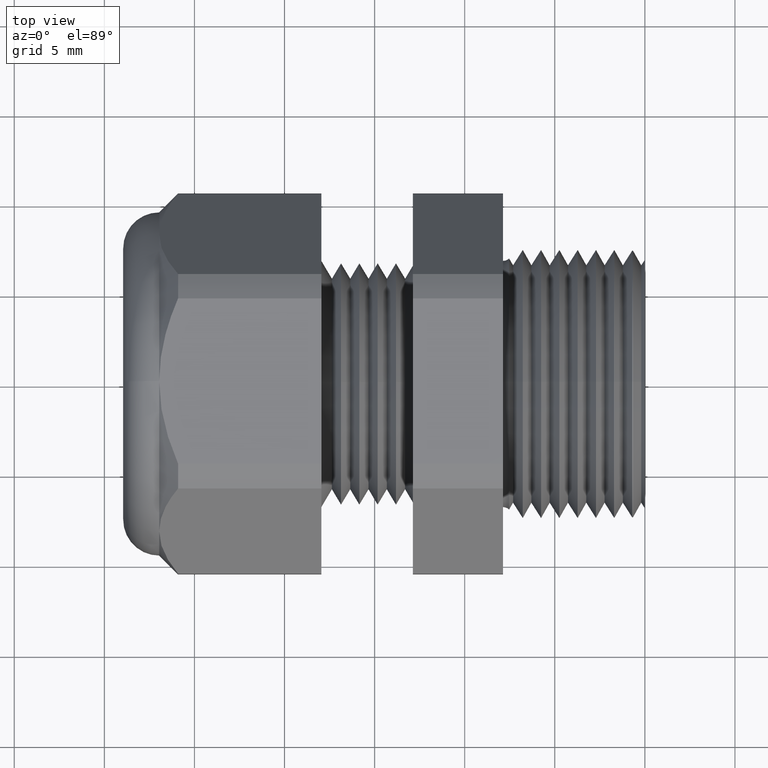
[diagram: clean part render]
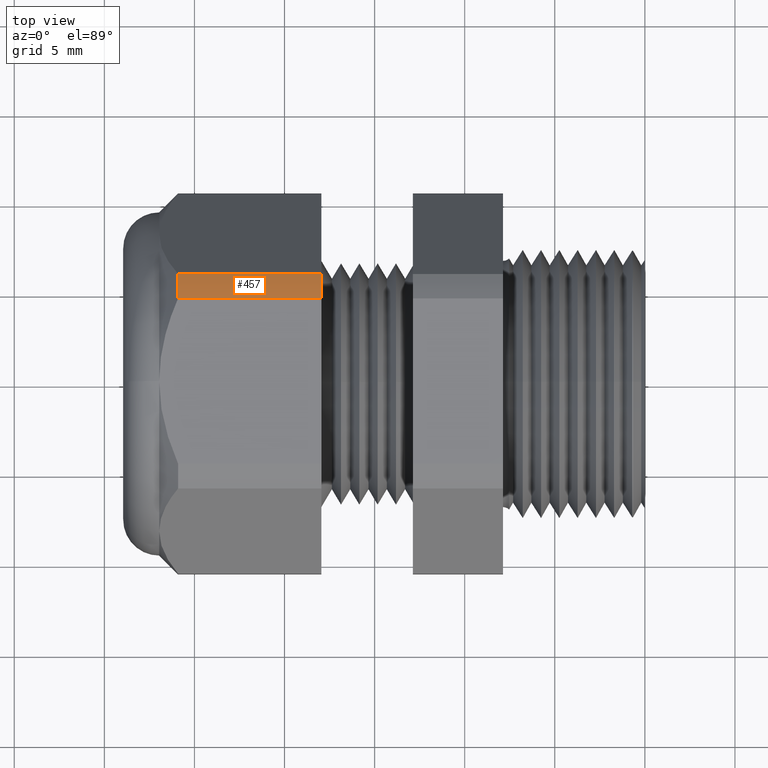
[diagram: same view with one face highlighted and labeled with its STEP entity id]
A machine part, top view. The second image highlights one B-rep face of the part: STEP entity #457.
In plain terms, the highlighted cylindrical surface (partial cylindrical patch) has radius 10.5727 mm, axis along (-1, 0, 0).
Its self-contained STEP definition (entity closure, byte-faithful):
#412 = EDGE_CURVE ( 'NONE', #465, #544, #2592, .T. ) ;
#456 = ORIENTED_EDGE ( 'NONE', *, *, #525, .T. ) ;
#457 = ADVANCED_FACE ( 'NONE', ( #2677 ), #2676, .T. ) ;
#465 = VERTEX_POINT ( 'NONE', #2656 ) ;
#525 = EDGE_CURVE ( 'NONE', #530, #546, #2827, .T. ) ;
#526 = ORIENTED_EDGE ( 'NONE', *, *, #547, .T. ) ;
#527 = ORIENTED_EDGE ( 'NONE', *, *, #528, .F. ) ;
#528 = EDGE_CURVE ( 'NONE', #530, #465, #2817, .T. ) ;
#530 = VERTEX_POINT ( 'NONE', #2811 ) ;
#534 = EDGE_LOOP ( 'NONE', ( #456, #526, #548, #527 ) ) ;
#544 = VERTEX_POINT ( 'NONE', #2883 ) ;
#546 = VERTEX_POINT ( 'NONE', #2882 ) ;
#547 = EDGE_CURVE ( 'NONE', #546, #544, #2881, .T. ) ;
#548 = ORIENTED_EDGE ( 'NONE', *, *, #412, .F. ) ;
#2589 = DIRECTION ( 'NONE',  ( -1.000000000000000000, 0.0000000000000000000, 0.0000000000000000000 ) ) ;
#2590 = VECTOR ( 'NONE', #2589, 39.37007874015748100 ) ;
#2591 = CARTESIAN_POINT ( 'NONE',  ( 0.0000000000000000000, 0.1806628420566889800, 0.3749999999999998300 ) ) ;
#2592 = LINE ( 'NONE', #2591, #2590 ) ;
#2656 = CARTESIAN_POINT ( 'NONE',  ( -0.7069291338582672800, 0.1806628420566889800, 0.3749999999999998300 ) ) ;
#2671 = DIRECTION ( 'NONE',  ( 0.0000000000000000000, 0.0000000000000000000, 1.000000000000000000 ) ) ;
#2672 = DIRECTION ( 'NONE',  ( -1.000000000000000000, 0.0000000000000000000, 0.0000000000000000000 ) ) ;
#2673 = CARTESIAN_POINT ( 'NONE',  ( 0.0000000000000000000, 0.0000000000000000000, 0.0000000000000000000 ) ) ;
#2674 = AXIS2_PLACEMENT_3D ( 'NONE', #2673, #2672, #2671 ) ;
#2676 = CYLINDRICAL_SURFACE ( 'NONE', #2674, 0.4162499999999999500 ) ;
#2677 = FACE_OUTER_BOUND ( 'NONE', #534, .T. ) ;
#2811 = CARTESIAN_POINT ( 'NONE',  ( -0.7069291338582672800, 0.2344281053908204600, 0.3439586107409877700 ) ) ;
#2813 = DIRECTION ( 'NONE',  ( 0.0000000000000000000, 0.0000000000000000000, -1.000000000000000000 ) ) ;
#2814 = DIRECTION ( 'NONE',  ( 1.000000000000000000, 0.0000000000000000000, 0.0000000000000000000 ) ) ;
#2815 = CARTESIAN_POINT ( 'NONE',  ( -0.7069291338582676100, 0.0000000000000000000, 0.0000000000000000000 ) ) ;
#2816 = AXIS2_PLACEMENT_3D ( 'NONE', #2815, #2814, #2813 ) ;
#2817 = CIRCLE ( 'NONE', #2816, 0.4162499999999999500 ) ;
#2818 = DIRECTION ( 'NONE',  ( -1.000000000000000000, 0.0000000000000000000, 0.0000000000000000000 ) ) ;
#2819 = VECTOR ( 'NONE', #2818, 39.37007874015748100 ) ;
#2826 = CARTESIAN_POINT ( 'NONE',  ( 0.0000000000000000000, 0.2344281053908204600, 0.3439586107409877700 ) ) ;
#2827 = LINE ( 'NONE', #2826, #2819 ) ;
#2877 = DIRECTION ( 'NONE',  ( 0.0000000000000000000, 0.0000000000000000000, -1.000000000000000000 ) ) ;
#2878 = DIRECTION ( 'NONE',  ( 1.000000000000000000, 0.0000000000000000000, 0.0000000000000000000 ) ) ;
#2879 = CARTESIAN_POINT ( 'NONE',  ( -1.020009842519684900, 0.0000000000000000000, 0.0000000000000000000 ) ) ;
#2880 = AXIS2_PLACEMENT_3D ( 'NONE', #2879, #2878, #2877 ) ;
#2881 = CIRCLE ( 'NONE', #2880, 0.4162499999999999500 ) ;
#2882 = CARTESIAN_POINT ( 'NONE',  ( -1.020009842519684900, 0.2344281053908204600, 0.3439586107409877700 ) ) ;
#2883 = CARTESIAN_POINT ( 'NONE',  ( -1.020009842519684900, 0.1806628420566889500, 0.3749999999999997800 ) ) ;